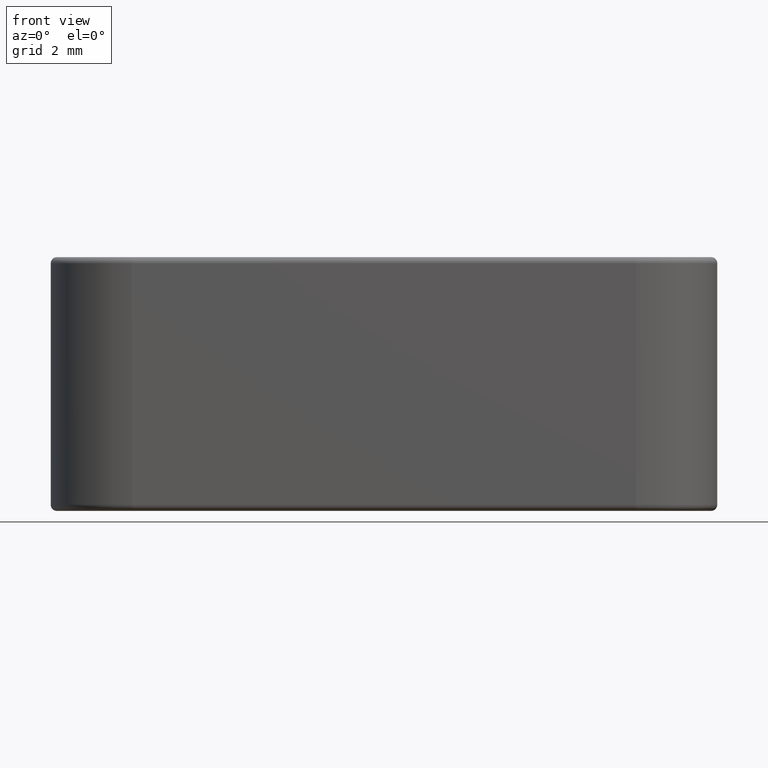
[diagram: clean part render]
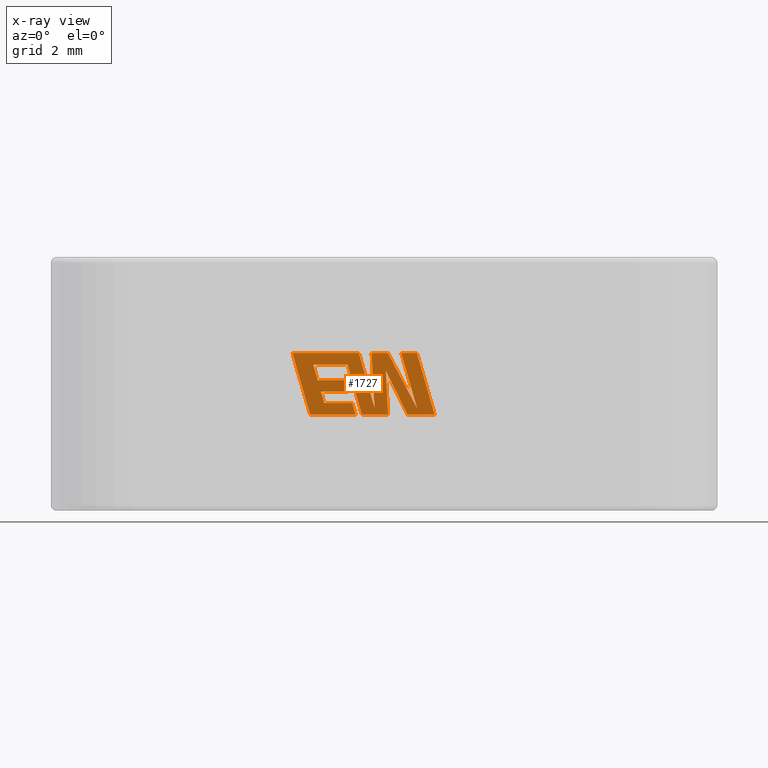
[diagram: x-ray — body ghosted, one internal face saturated and labeled with its STEP entity id]
A machine part, front view, then the same camera in x-ray: the body is ghosted and one INTERNAL B-rep face — a face not visible from any outside direction — is saturated and labeled: STEP entity #1727.
In plain terms, the highlighted planar face has unit normal (0, -1, -0).
Its self-contained STEP definition (entity closure, byte-faithful):
#11 = CARTESIAN_POINT ( 'NONE',  ( 0.1340951906034595909, 2.649999999999999911, 3.141848782489869762 ) ) ;
#19 = ORIENTED_EDGE ( 'NONE', *, *, #571, .F. ) ;
#48 = CARTESIAN_POINT ( 'NONE',  ( 0.1290241386763800457, 2.649999999999999911, 5.157999999999998586 ) ) ;
#55 = EDGE_CURVE ( 'NONE', #3092, #285, #2041, .T. ) ;
#92 = LINE ( 'NONE', #106, #1279 ) ;
#106 = CARTESIAN_POINT ( 'NONE',  ( -1.193775860063664762, 2.649999999999999911, 4.774426007866965804 ) ) ;
#119 = ORIENTED_EDGE ( 'NONE', *, *, #1479, .F. ) ;
#148 = VERTEX_POINT ( 'NONE', #784 ) ;
#170 = VERTEX_POINT ( 'NONE', #2051 ) ;
#252 = VERTEX_POINT ( 'NONE', #1329 ) ;
#258 = LINE ( 'NONE', #1913, #689 ) ;
#285 = VERTEX_POINT ( 'NONE', #839 ) ;
#299 = VERTEX_POINT ( 'NONE', #890 ) ;
#336 = CARTESIAN_POINT ( 'NONE',  ( -1.953187383102237273, 2.649999999999999911, 3.525612814474558210 ) ) ;
#360 = VERTEX_POINT ( 'NONE', #2446 ) ;
#394 = EDGE_CURVE ( 'NONE', #1764, #2471, #663, .T. ) ;
#401 = CARTESIAN_POINT ( 'NONE',  ( 0.1290241386763800457, 2.649999999999999911, 5.157999999999998586 ) ) ;
#408 = VECTOR ( 'NONE', #3381, 1000.000000000000000 ) ;
#411 = VECTOR ( 'NONE', #488, 1000.000000000000000 ) ;
#450 = DIRECTION ( 'NONE',  ( -0.4443210308329521019, 0.000000000000000000, 0.8958676361826800605 ) ) ;
#455 = CARTESIAN_POINT ( 'NONE',  ( -1.034608285632153901, 2.649999999999999911, 3.525612814474558210 ) ) ;
#474 = EDGE_CURVE ( 'NONE', #252, #2617, #750, .T. ) ;
#486 = LINE ( 'NONE', #2873, #862 ) ;
#487 = ORIENTED_EDGE ( 'NONE', *, *, #2327, .F. ) ;
#488 = DIRECTION ( 'NONE',  ( 1.000000000000000000, 0.000000000000000000, 0.000000000000000000 ) ) ;
#497 = CARTESIAN_POINT ( 'NONE',  ( 1.655203566271572058, 2.649999999999999911, 3.141848782489869762 ) ) ;
#502 = CARTESIAN_POINT ( 'NONE',  ( 0.7709333546737539011, 2.649999999999999911, 3.141848782489869762 ) ) ;
#520 = VECTOR ( 'NONE', #2666, 1000.000000000000000 ) ;
#524 = EDGE_CURVE ( 'NONE', #3223, #170, #2083, .T. ) ;
#551 = CARTESIAN_POINT ( 'NONE',  ( 1.655203566271572058, 2.649999999999999911, 3.141848782489869762 ) ) ;
#558 = LINE ( 'NONE', #1620, #687 ) ;
#571 = EDGE_CURVE ( 'NONE', #1307, #2324, #1603, .T. ) ;
#573 = CARTESIAN_POINT ( 'NONE',  ( -1.182097606037586068, 2.649999999999999911, 5.157999999999998586 ) ) ;
#591 = ORIENTED_EDGE ( 'NONE', *, *, #55, .F. ) ;
#649 = CARTESIAN_POINT ( 'NONE',  ( 0.05655977996424615267, 2.649999999999999911, 4.582213116643991668 ) ) ;
#663 = LINE ( 'NONE', #2771, #3141 ) ;
#687 = VECTOR ( 'NONE', #1381, 1000.000000000000000 ) ;
#689 = VECTOR ( 'NONE', #3168, 1000.000000000000114 ) ;
#693 = VERTEX_POINT ( 'NONE', #401 ) ;
#705 = ORIENTED_EDGE ( 'NONE', *, *, #1705, .F. ) ;
#746 = DIRECTION ( 'NONE',  ( -0.2760118818968566035, 0.000000000000000000, 0.9611542233438687965 ) ) ;
#750 = LINE ( 'NONE', #1531, #411 ) ;
#775 = LINE ( 'NONE', #1893, #2421 ) ;
#782 = CARTESIAN_POINT ( 'NONE',  ( -0.3078529677499121653, 2.649999999999999911, 3.363073565194044434 ) ) ;
#784 = CARTESIAN_POINT ( 'NONE',  ( 1.081136075157814513, 2.649999999999999911, 3.354429816933985453 ) ) ;
#787 = EDGE_CURVE ( 'NONE', #2774, #2384, #2725, .T. ) ;
#788 = VECTOR ( 'NONE', #2447, 1000.000000000000227 ) ;
#802 = DIRECTION ( 'NONE',  ( 0.2759782365590623399, 0.000000000000000000, -0.9611638845408987386 ) ) ;
#813 = CARTESIAN_POINT ( 'NONE',  ( -2.415076186631972988, 2.649999999999999911, 3.141848782489869762 ) ) ;
#824 = LINE ( 'NONE', #336, #520 ) ;
#826 = ORIENTED_EDGE ( 'NONE', *, *, #2528, .F. ) ;
#833 = DIRECTION ( 'NONE',  ( 0.000000000000000000, -1.000000000000000000, -0.000000000000000000 ) ) ;
#839 = CARTESIAN_POINT ( 'NONE',  ( -0.9256112330473496019, 2.649999999999999911, 3.141848782489869762 ) ) ;
#841 = LINE ( 'NONE', #48, #2619 ) ;
#844 = VERTEX_POINT ( 'NONE', #2338 ) ;
#862 = VECTOR ( 'NONE', #746, 1000.000000000000114 ) ;
#866 = DIRECTION ( 'NONE',  ( -1.000000000000000000, 0.000000000000000000, 0.000000000000000000 ) ) ;
#885 = DIRECTION ( 'NONE',  ( 1.000000000000000000, 0.000000000000000000, 0.000000000000000000 ) ) ;
#890 = CARTESIAN_POINT ( 'NONE',  ( 0.1340951906034595909, 2.649999999999999911, 3.141848782489869762 ) ) ;
#897 = CARTESIAN_POINT ( 'NONE',  ( -2.062307042045225636, 2.649999999999999911, 3.900616622153747937 ) ) ;
#956 = EDGE_LOOP ( 'NONE', ( #487, #826, #2514, #1485, #1139, #3320, #119, #3075, #1074, #2205, #2420, #591, #1121, #3230, #1687, #3352, #19, #705, #3379, #1598, #2171, #1749, #2831 ) ) ;
#965 = VECTOR ( 'NONE', #1614, 1000.000000000000227 ) ;
#970 = CARTESIAN_POINT ( 'NONE',  ( -0.9256112330473496019, 2.649999999999999911, 3.141848782489869762 ) ) ;
#1071 = CARTESIAN_POINT ( 'NONE',  ( -2.062307042045225636, 2.649999999999999911, 3.900616622153747937 ) ) ;
#1074 = ORIENTED_EDGE ( 'NONE', *, *, #1289, .F. ) ;
#1091 = CARTESIAN_POINT ( 'NONE',  ( -1.196951364739307744, 2.649999999999999911, 3.900616622153747937 ) ) ;
#1106 = VERTEX_POINT ( 'NONE', #1474 ) ;
#1121 = ORIENTED_EDGE ( 'NONE', *, *, #1394, .F. ) ;
#1139 = ORIENTED_EDGE ( 'NONE', *, *, #2643, .F. ) ;
#1279 = VECTOR ( 'NONE', #866, 1000.000000000000000 ) ;
#1289 = EDGE_CURVE ( 'NONE', #2384, #3432, #2475, .T. ) ;
#1303 = AXIS2_PLACEMENT_3D ( 'NONE', #1880, #833, #1362 ) ;
#1307 = VERTEX_POINT ( 'NONE', #1340 ) ;
#1329 = CARTESIAN_POINT ( 'NONE',  ( 0.5632100355372096079, 2.649999999999999911, 5.157999999999998586 ) ) ;
#1340 = CARTESIAN_POINT ( 'NONE',  ( -2.168643536653550807, 2.649999999999999911, 4.273333821249929443 ) ) ;
#1362 = DIRECTION ( 'NONE',  ( 0.000000000000000000, 0.000000000000000000, -1.000000000000000000 ) ) ;
#1369 = CARTESIAN_POINT ( 'NONE',  ( -2.311418640967355831, 2.649999999999999911, 4.774426007866965804 ) ) ;
#1381 = DIRECTION ( 'NONE',  ( 1.000000000000000000, 0.000000000000000000, 0.000000000000000000 ) ) ;
#1385 = DIRECTION ( 'NONE',  ( 0.4668459304955220324, 0.000000000000000000, -0.8843386665637605892 ) ) ;
#1394 = EDGE_CURVE ( 'NONE', #1766, #3092, #824, .T. ) ;
#1424 = EDGE_CURVE ( 'NONE', #844, #693, #558, .T. ) ;
#1434 = DIRECTION ( 'NONE',  ( 0.05375259206908547527, 0.000000000000000000, -0.9985542843760946141 ) ) ;
#1474 = CARTESIAN_POINT ( 'NONE',  ( -1.193775860063664762, 2.649999999999999911, 4.774426007866965804 ) ) ;
#1479 = EDGE_CURVE ( 'NONE', #1528, #844, #2176, .T. ) ;
#1485 = ORIENTED_EDGE ( 'NONE', *, *, #1649, .F. ) ;
#1521 = LINE ( 'NONE', #1987, #2455 ) ;
#1528 = VERTEX_POINT ( 'NONE', #1966 ) ;
#1531 = CARTESIAN_POINT ( 'NONE',  ( 0.5632100355372096079, 2.649999999999999911, 5.157999999999998586 ) ) ;
#1598 = ORIENTED_EDGE ( 'NONE', *, *, #2698, .F. ) ;
#1603 = LINE ( 'NONE', #2618, #1692 ) ;
#1614 = DIRECTION ( 'NONE',  ( 0.2793947940878294123, 0.000000000000000000, -0.9601763114327593884 ) ) ;
#1620 = CARTESIAN_POINT ( 'NONE',  ( -0.4084637454208629448, 2.649999999999999911, 5.157999999999998586 ) ) ;
#1630 = CARTESIAN_POINT ( 'NONE',  ( -2.995243345693006543, 2.649999999999999911, 5.157999999999999474 ) ) ;
#1633 = VECTOR ( 'NONE', #2427, 1000.000000000000227 ) ;
#1646 = LINE ( 'NONE', #3294, #2112 ) ;
#1649 = EDGE_CURVE ( 'NONE', #148, #252, #486, .T. ) ;
#1652 = EDGE_CURVE ( 'NONE', #285, #2774, #1819, .T. ) ;
#1687 = ORIENTED_EDGE ( 'NONE', *, *, #394, .F. ) ;
#1692 = VECTOR ( 'NONE', #2640, 1000.000000000000000 ) ;
#1701 = EDGE_CURVE ( 'NONE', #2471, #1766, #2095, .T. ) ;
#1705 = EDGE_CURVE ( 'NONE', #2715, #1307, #258, .T. ) ;
#1721 = DIRECTION ( 'NONE',  ( 0.2732148821746273604, 0.000000000000000000, -0.9619530280415486967 ) ) ;
#1727 = ADVANCED_FACE ( 'NONE', ( #2115 ), #2911, .T. ) ;
#1743 = VECTOR ( 'NONE', #450, 1000.000000000000000 ) ;
#1749 = ORIENTED_EDGE ( 'NONE', *, *, #2971, .F. ) ;
#1753 = CARTESIAN_POINT ( 'NONE',  ( -1.034608285632153901, 2.649999999999999911, 3.525612814474558210 ) ) ;
#1764 = VERTEX_POINT ( 'NONE', #1091 ) ;
#1766 = VERTEX_POINT ( 'NONE', #3187 ) ;
#1768 = EDGE_CURVE ( 'NONE', #3432, #1528, #775, .T. ) ;
#1803 = VECTOR ( 'NONE', #1721, 1000.000000000000114 ) ;
#1819 = LINE ( 'NONE', #970, #408 ) ;
#1841 = CARTESIAN_POINT ( 'NONE',  ( 0.7709333546737539011, 2.649999999999999911, 3.141848782489869762 ) ) ;
#1866 = LINE ( 'NONE', #11, #2850 ) ;
#1876 = LINE ( 'NONE', #497, #3287 ) ;
#1880 = CARTESIAN_POINT ( 'NONE',  ( -0.01297471066781172300, 2.649999999999999911, -1.857415295886749362 ) ) ;
#1893 = CARTESIAN_POINT ( 'NONE',  ( -0.8232287951173768992, 2.649999999999999911, 5.157999999999998586 ) ) ;
#1895 = DIRECTION ( 'NONE',  ( -1.000000000000000000, 0.000000000000000000, 0.000000000000000000 ) ) ;
#1899 = VECTOR ( 'NONE', #1434, 1000.000000000000000 ) ;
#1913 = CARTESIAN_POINT ( 'NONE',  ( -2.311418640967355831, 2.649999999999999911, 4.774426007866965804 ) ) ;
#1966 = CARTESIAN_POINT ( 'NONE',  ( -0.3078529677499121653, 2.649999999999999911, 3.363073565194044434 ) ) ;
#1987 = CARTESIAN_POINT ( 'NONE',  ( 1.075545225216797629, 2.649999999999999911, 5.157999999999998586 ) ) ;
#2016 = DIRECTION ( 'NONE',  ( -1.000000000000000000, 0.000000000000000000, 0.000000000000000000 ) ) ;
#2041 = LINE ( 'NONE', #455, #1803 ) ;
#2051 = CARTESIAN_POINT ( 'NONE',  ( 0.05655977996424615267, 2.649999999999999911, 4.582213116643991668 ) ) ;
#2070 = CARTESIAN_POINT ( 'NONE',  ( -2.415076186631972988, 2.649999999999999911, 3.141848782489869762 ) ) ;
#2083 = LINE ( 'NONE', #1841, #1743 ) ;
#2091 = DIRECTION ( 'NONE',  ( -1.000000000000000000, 0.000000000000000000, 0.000000000000000000 ) ) ;
#2095 = LINE ( 'NONE', #1071, #965 ) ;
#2112 = VECTOR ( 'NONE', #2708, 1000.000000000000114 ) ;
#2115 = FACE_OUTER_BOUND ( 'NONE', #956, .T. ) ;
#2125 = LINE ( 'NONE', #2668, #788 ) ;
#2171 = ORIENTED_EDGE ( 'NONE', *, *, #3252, .F. ) ;
#2176 = LINE ( 'NONE', #782, #1633 ) ;
#2205 = ORIENTED_EDGE ( 'NONE', *, *, #787, .F. ) ;
#2324 = VERTEX_POINT ( 'NONE', #3442 ) ;
#2327 = EDGE_CURVE ( 'NONE', #2342, #3223, #1876, .T. ) ;
#2338 = CARTESIAN_POINT ( 'NONE',  ( -0.4084637454208629448, 2.649999999999999911, 5.157999999999998586 ) ) ;
#2339 = CARTESIAN_POINT ( 'NONE',  ( 1.075545225216797629, 2.649999999999999911, 5.157999999999998586 ) ) ;
#2342 = VERTEX_POINT ( 'NONE', #551 ) ;
#2384 = VERTEX_POINT ( 'NONE', #1630 ) ;
#2419 = EDGE_CURVE ( 'NONE', #1106, #2715, #92, .T. ) ;
#2420 = ORIENTED_EDGE ( 'NONE', *, *, #1652, .F. ) ;
#2421 = VECTOR ( 'NONE', #802, 1000.000000000000114 ) ;
#2427 = DIRECTION ( 'NONE',  ( -0.05596501978069183536, 0.000000000000000000, 0.9984327301130240251 ) ) ;
#2446 = CARTESIAN_POINT ( 'NONE',  ( -0.7245122840650081164, 2.649999999999999911, 3.141848782489869762 ) ) ;
#2447 = DIRECTION ( 'NONE',  ( 0.2746459304916903932, 0.000000000000000000, -0.9615454294334477847 ) ) ;
#2455 = VECTOR ( 'NONE', #2793, 1000.000000000000227 ) ;
#2471 = VERTEX_POINT ( 'NONE', #897 ) ;
#2475 = LINE ( 'NONE', #573, #2524 ) ;
#2514 = ORIENTED_EDGE ( 'NONE', *, *, #474, .F. ) ;
#2524 = VECTOR ( 'NONE', #885, 1000.000000000000000 ) ;
#2528 = EDGE_CURVE ( 'NONE', #2617, #2342, #1521, .T. ) ;
#2617 = VERTEX_POINT ( 'NONE', #2339 ) ;
#2618 = CARTESIAN_POINT ( 'NONE',  ( -2.168643536653550807, 2.649999999999999911, 4.273333821249929443 ) ) ;
#2619 = VECTOR ( 'NONE', #1385, 1000.000000000000000 ) ;
#2640 = DIRECTION ( 'NONE',  ( 1.000000000000000000, 0.000000000000000000, 0.000000000000000000 ) ) ;
#2643 = EDGE_CURVE ( 'NONE', #693, #148, #841, .T. ) ;
#2666 = DIRECTION ( 'NONE',  ( 1.000000000000000000, 0.000000000000000000, 0.000000000000000000 ) ) ;
#2668 = CARTESIAN_POINT ( 'NONE',  ( -1.303410465705907129, 2.649999999999999911, 4.273333821249929443 ) ) ;
#2698 = EDGE_CURVE ( 'NONE', #360, #1106, #1646, .T. ) ;
#2708 = DIRECTION ( 'NONE',  ( -0.2762517575166429373, 0.000000000000000000, 0.9610853065513830229 ) ) ;
#2715 = VERTEX_POINT ( 'NONE', #1369 ) ;
#2725 = LINE ( 'NONE', #2070, #3362 ) ;
#2771 = CARTESIAN_POINT ( 'NONE',  ( -1.196951364739307744, 2.649999999999999911, 3.900616622153747937 ) ) ;
#2774 = VERTEX_POINT ( 'NONE', #813 ) ;
#2793 = DIRECTION ( 'NONE',  ( 0.2763139702539114673, 0.000000000000000000, -0.9610674221107072812 ) ) ;
#2828 = EDGE_CURVE ( 'NONE', #2324, #1764, #2125, .T. ) ;
#2831 = ORIENTED_EDGE ( 'NONE', *, *, #524, .F. ) ;
#2850 = VECTOR ( 'NONE', #1895, 1000.000000000000000 ) ;
#2873 = CARTESIAN_POINT ( 'NONE',  ( 1.081136075157814513, 2.649999999999999911, 3.354429816933985453 ) ) ;
#2911 = PLANE ( 'NONE',  #1303 ) ;
#2971 = EDGE_CURVE ( 'NONE', #170, #299, #3281, .T. ) ;
#3028 = CARTESIAN_POINT ( 'NONE',  ( -0.8232287951173768992, 2.649999999999999911, 5.157999999999998586 ) ) ;
#3075 = ORIENTED_EDGE ( 'NONE', *, *, #1768, .F. ) ;
#3092 = VERTEX_POINT ( 'NONE', #1753 ) ;
#3141 = VECTOR ( 'NONE', #2016, 1000.000000000000000 ) ;
#3142 = DIRECTION ( 'NONE',  ( -0.2765379750249956081, 0.000000000000000000, 0.9610029908221279227 ) ) ;
#3168 = DIRECTION ( 'NONE',  ( 0.2740217765954066076, 0.000000000000000000, -0.9617234872620595842 ) ) ;
#3187 = CARTESIAN_POINT ( 'NONE',  ( -1.953187383102237273, 2.649999999999999911, 3.525612814474558210 ) ) ;
#3223 = VERTEX_POINT ( 'NONE', #502 ) ;
#3230 = ORIENTED_EDGE ( 'NONE', *, *, #1701, .F. ) ;
#3252 = EDGE_CURVE ( 'NONE', #299, #360, #1866, .T. ) ;
#3281 = LINE ( 'NONE', #649, #1899 ) ;
#3287 = VECTOR ( 'NONE', #2091, 1000.000000000000000 ) ;
#3294 = CARTESIAN_POINT ( 'NONE',  ( -0.7245122840650081164, 2.649999999999999911, 3.141848782489869762 ) ) ;
#3320 = ORIENTED_EDGE ( 'NONE', *, *, #1424, .F. ) ;
#3352 = ORIENTED_EDGE ( 'NONE', *, *, #2828, .F. ) ;
#3362 = VECTOR ( 'NONE', #3142, 1000.000000000000000 ) ;
#3379 = ORIENTED_EDGE ( 'NONE', *, *, #2419, .F. ) ;
#3381 = DIRECTION ( 'NONE',  ( -1.000000000000000000, 0.000000000000000000, 0.000000000000000000 ) ) ;
#3432 = VERTEX_POINT ( 'NONE', #3028 ) ;
#3442 = CARTESIAN_POINT ( 'NONE',  ( -1.303410465705907129, 2.649999999999999911, 4.273333821249929443 ) ) ;